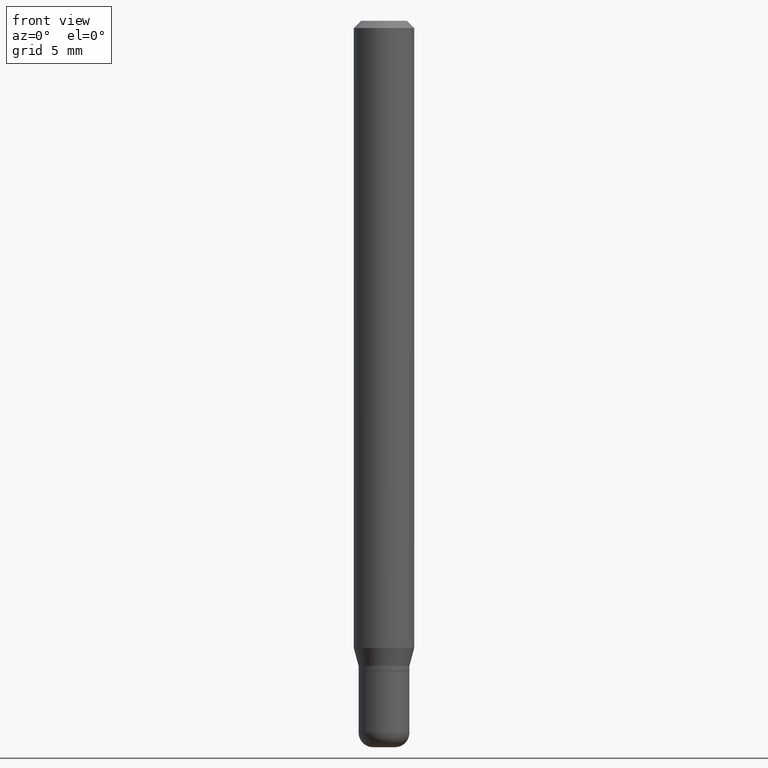
[diagram: clean part render]
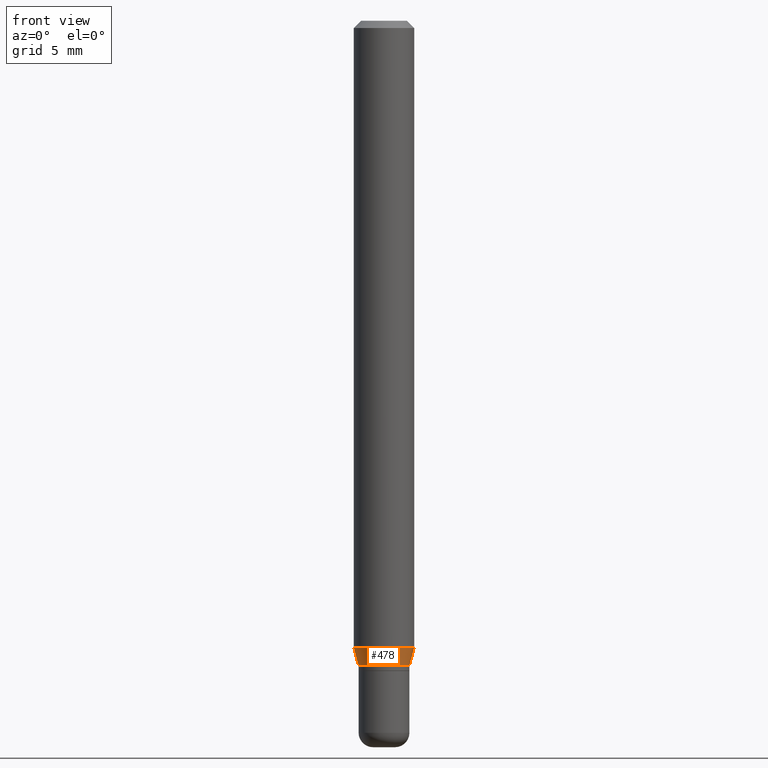
[diagram: same view with one face highlighted and labeled with its STEP entity id]
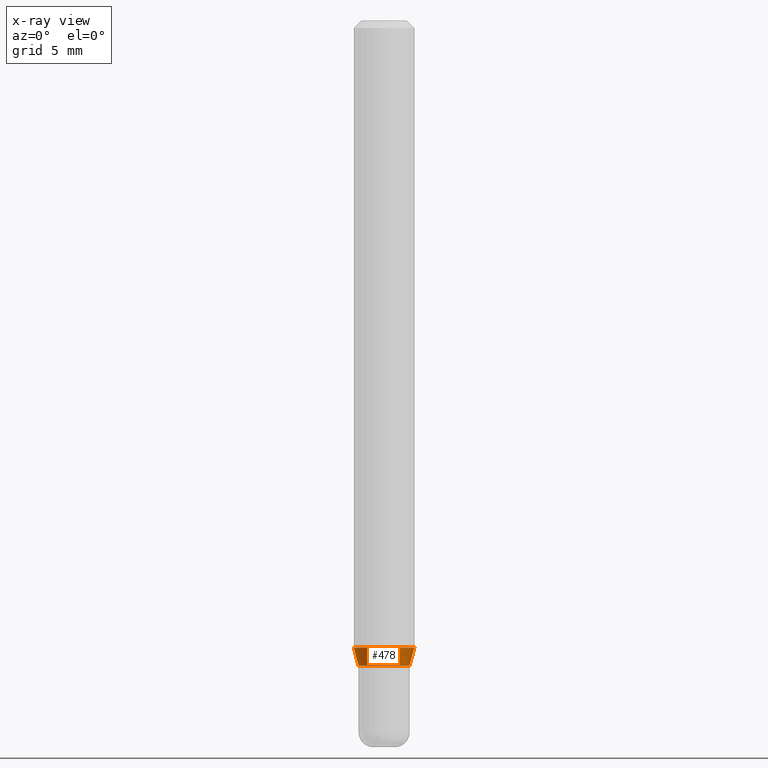
[diagram: x-ray of the same camera — body ghosted, the highlighted face saturated]
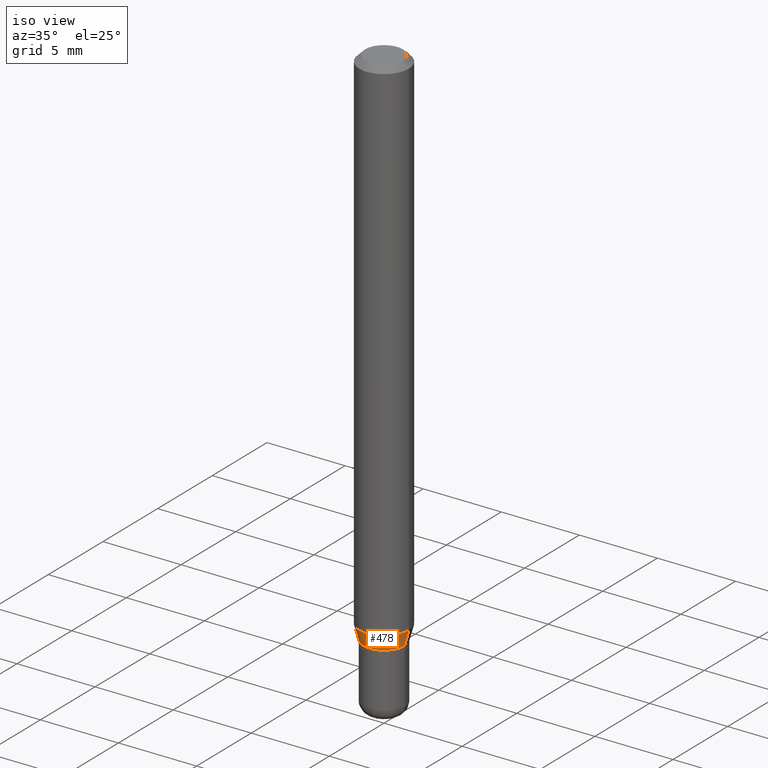
[diagram: same view with one face highlighted and labeled with its STEP entity id]
A machine part, front view. The second image highlights one B-rep face of the part: STEP entity #478.
The next image is the same camera in x-ray: the body ghosted, the highlighted face saturated — about 0% of this face is hidden behind the body in this view.
A second angle (iso view) of the same face is appended — the face is thin or edge-on in the first view.
In plain terms, the highlighted conical surface has half-angle 15 deg.
Its self-contained STEP definition (entity closure, byte-faithful):
#6 = VECTOR ( 'NONE', #514, 39.37007874015748143 ) ;
#12 = CIRCLE ( 'NONE', #60, 0.05250000000000007438 ) ;
#18 = VERTEX_POINT ( 'NONE', #504 ) ;
#27 = DIRECTION ( 'NONE',  ( 1.000000000000000000, -6.982962677686262766E-15, 0.000000000000000000 ) ) ;
#60 = AXIS2_PLACEMENT_3D ( 'NONE', #430, #113, #191 ) ;
#67 = EDGE_CURVE ( 'NONE', #492, #157, #197, .T. ) ;
#73 = ORIENTED_EDGE ( 'NONE', *, *, #506, .F. ) ;
#82 = FACE_OUTER_BOUND ( 'NONE', #518, .T. ) ;
#113 = DIRECTION ( 'NONE',  ( -2.445468806185136597E-29, 3.491481338843145583E-15, 1.000000000000000000 ) ) ;
#129 = ORIENTED_EDGE ( 'NONE', *, *, #67, .F. ) ;
#157 = VERTEX_POINT ( 'NONE', #267 ) ;
#191 = DIRECTION ( 'NONE',  ( 1.000000000000000000, -6.982962677686258033E-15, 0.000000000000000000 ) ) ;
#197 = LINE ( 'NONE', #347, #6 ) ;
#209 = DIRECTION ( 'NONE',  ( -2.445468806185136597E-29, 3.491481338843145583E-15, 1.000000000000000000 ) ) ;
#215 = EDGE_CURVE ( 'NONE', #492, #18, #12, .T. ) ;
#253 = CIRCLE ( 'NONE', #295, 0.06250000000000000000 ) ;
#258 = CARTESIAN_POINT ( 'NONE',  ( 0.05250000000000007438, -5.017258683917600838E-15, -1.332000000000000517 ) ) ;
#267 = CARTESIAN_POINT ( 'NONE',  ( -0.06250000000000000000, -4.076260075986598044E-15, -1.294679491924312087 ) ) ;
#288 = CARTESIAN_POINT ( 'NONE',  ( -0.05250000000000007438, -4.176939141525808200E-15, -1.332000000000000517 ) ) ;
#291 = VERTEX_POINT ( 'NONE', #337 ) ;
#295 = AXIS2_PLACEMENT_3D ( 'NONE', #511, #468, #27 ) ;
#306 = VECTOR ( 'NONE', #465, 39.37007874015748143 ) ;
#337 = CARTESIAN_POINT ( 'NONE',  ( 0.06250000000000000000, -4.956784453192051541E-15, -1.294679491924312087 ) ) ;
#347 = CARTESIAN_POINT ( 'NONE',  ( -0.05250000000000007438, -4.277618207065018355E-15, -1.332000000000000517 ) ) ;
#350 = EDGE_CURVE ( 'NONE', #18, #291, #460, .T. ) ;
#362 = DIRECTION ( 'NONE',  ( 1.000000000000000000, -6.982962677686258033E-15, 0.000000000000000000 ) ) ;
#401 = CARTESIAN_POINT ( 'NONE',  ( 3.257364449838602633E-29, -4.650653143339071678E-15, -1.332000000000000517 ) ) ;
#415 = ORIENTED_EDGE ( 'NONE', *, *, #350, .T. ) ;
#430 = CARTESIAN_POINT ( 'NONE',  ( 3.257364449838602633E-29, -4.650653143339071678E-15, -1.332000000000000517 ) ) ;
#446 = CONICAL_SURFACE ( 'NONE', #482, 0.05250000000000007438, 0.2617993877991501850 ) ;
#460 = LINE ( 'NONE', #258, #306 ) ;
#462 = ORIENTED_EDGE ( 'NONE', *, *, #215, .T. ) ;
#465 = DIRECTION ( 'NONE',  ( 0.2588190451025214611, 1.565188264969620982E-15, 0.9659258262890679791 ) ) ;
#468 = DIRECTION ( 'NONE',  ( -2.445468806185136597E-29, 3.491481338843145583E-15, 1.000000000000000000 ) ) ;
#478 = ADVANCED_FACE ( 'NONE', ( #82 ), #446, .T. ) ;
#482 = AXIS2_PLACEMENT_3D ( 'NONE', #401, #209, #362 ) ;
#492 = VERTEX_POINT ( 'NONE', #288 ) ;
#504 = CARTESIAN_POINT ( 'NONE',  ( 0.05250000000000007438, -5.017258683917600838E-15, -1.332000000000000517 ) ) ;
#506 = EDGE_CURVE ( 'NONE', #157, #291, #253, .T. ) ;
#511 = CARTESIAN_POINT ( 'NONE',  ( 3.166098311508526589E-29, -4.520349285836659871E-15, -1.294679491924312087 ) ) ;
#514 = DIRECTION ( 'NONE',  ( -0.2588190451025214611, 5.211531920934550253E-15, 0.9659258262890679791 ) ) ;
#518 = EDGE_LOOP ( 'NONE', ( #129, #462, #415, #73 ) ) ;